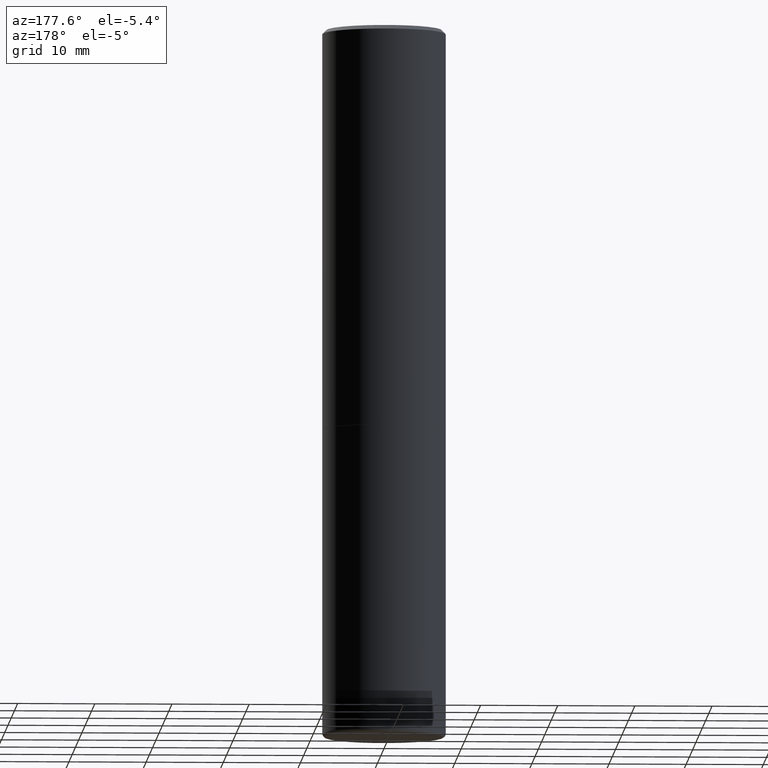
[diagram: clean part render]
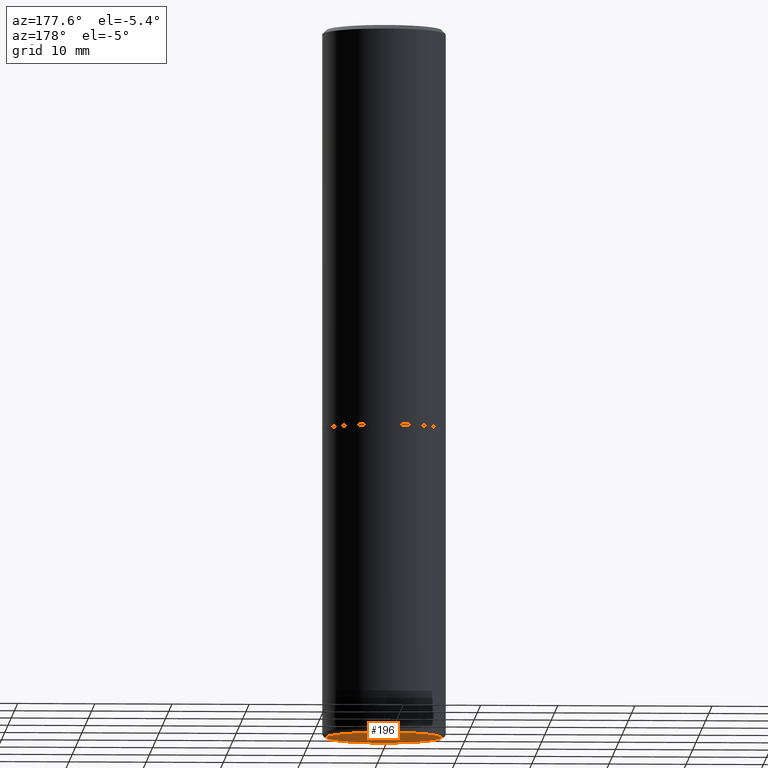
[diagram: same view with one face highlighted and labeled with its STEP entity id]
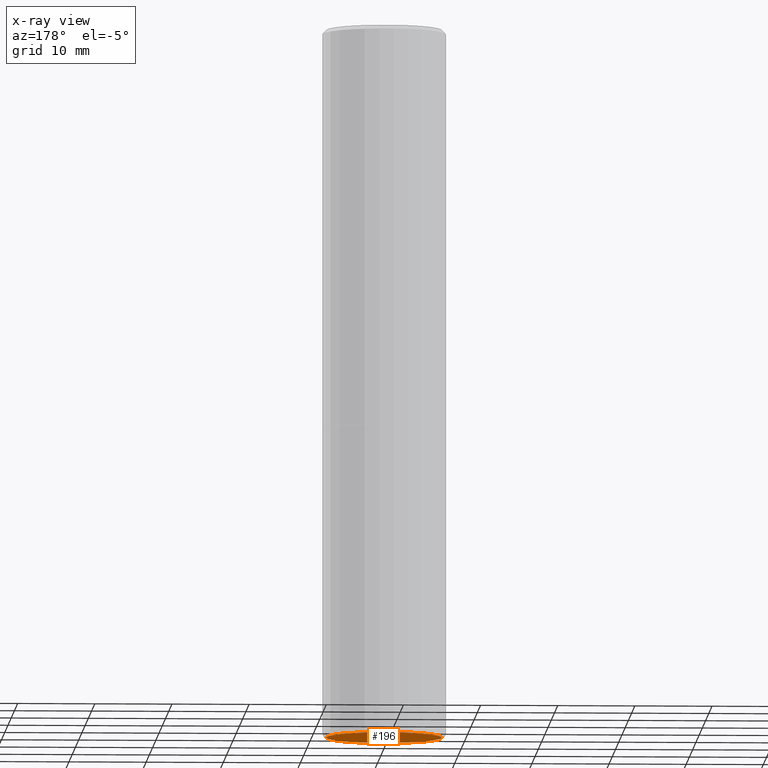
[diagram: x-ray of the same camera — body ghosted, the highlighted face saturated]
A machine part, auxiliary view. The second image highlights one B-rep face of the part: STEP entity #196.
The next image is the same camera in x-ray: the body ghosted, the highlighted face saturated — about 0% of this face is hidden behind the body in this view.
In plain terms, the highlighted planar face has unit normal (0, -0, -1).
Its self-contained STEP definition (entity closure, byte-faithful):
#2 = CARTESIAN_POINT ( 'NONE',  ( 8.857488016002564476E-29, -1.264614540928987199E-14, -3.621999999999999886 ) ) ;
#38 = CARTESIAN_POINT ( 'NONE',  ( 0.2952500000000000124, -1.470786513987674265E-14, -3.621999999999999886 ) ) ;
#42 = CIRCLE ( 'NONE', #94, 0.2952500000000000124 ) ;
#80 = DIRECTION ( 'NONE',  ( -2.445468806185136597E-29, 3.491481338843145583E-15, 1.000000000000000000 ) ) ;
#94 = AXIS2_PLACEMENT_3D ( 'NONE', #368, #80, #203 ) ;
#120 = ORIENTED_EDGE ( 'NONE', *, *, #132, .F. ) ;
#130 = EDGE_LOOP ( 'NONE', ( #120, #187 ) ) ;
#132 = EDGE_CURVE ( 'NONE', #160, #156, #359, .T. ) ;
#134 = DIRECTION ( 'NONE',  ( 2.438088387897960049E-29, -3.491481338843145188E-15, -1.000000000000000000 ) ) ;
#156 = VERTEX_POINT ( 'NONE', #264 ) ;
#160 = VERTEX_POINT ( 'NONE', #38 ) ;
#161 = EDGE_CURVE ( 'NONE', #156, #160, #42, .T. ) ;
#174 = CARTESIAN_POINT ( 'NONE',  ( 8.857488016002564476E-29, -1.264614540928987199E-14, -3.621999999999999886 ) ) ;
#187 = ORIENTED_EDGE ( 'NONE', *, *, #161, .F. ) ;
#196 = ADVANCED_FACE ( 'NONE', ( #256 ), #362, .T. ) ;
#203 = DIRECTION ( 'NONE',  ( 1.000000000000000000, -6.982962677686266711E-15, 0.000000000000000000 ) ) ;
#256 = FACE_OUTER_BOUND ( 'NONE', #130, .T. ) ;
#264 = CARTESIAN_POINT ( 'NONE',  ( -0.2952500000000000124, -1.044388843129820283E-14, -3.621999999999999886 ) ) ;
#279 = AXIS2_PLACEMENT_3D ( 'NONE', #2, #134, #394 ) ;
#285 = AXIS2_PLACEMENT_3D ( 'NONE', #174, #327, #297 ) ;
#297 = DIRECTION ( 'NONE',  ( 1.000000000000000000, -6.982962677686266711E-15, 0.000000000000000000 ) ) ;
#327 = DIRECTION ( 'NONE',  ( -2.445468806185136597E-29, 3.491481338843145583E-15, 1.000000000000000000 ) ) ;
#359 = CIRCLE ( 'NONE', #285, 0.2952500000000000124 ) ;
#362 = PLANE ( 'NONE',  #279 ) ;
#368 = CARTESIAN_POINT ( 'NONE',  ( 8.857488016002564476E-29, -1.264614540928987199E-14, -3.621999999999999886 ) ) ;
#394 = DIRECTION ( 'NONE',  ( -1.000000000000000000, 6.982962677686265922E-15, -4.876176775795935793E-29 ) ) ;